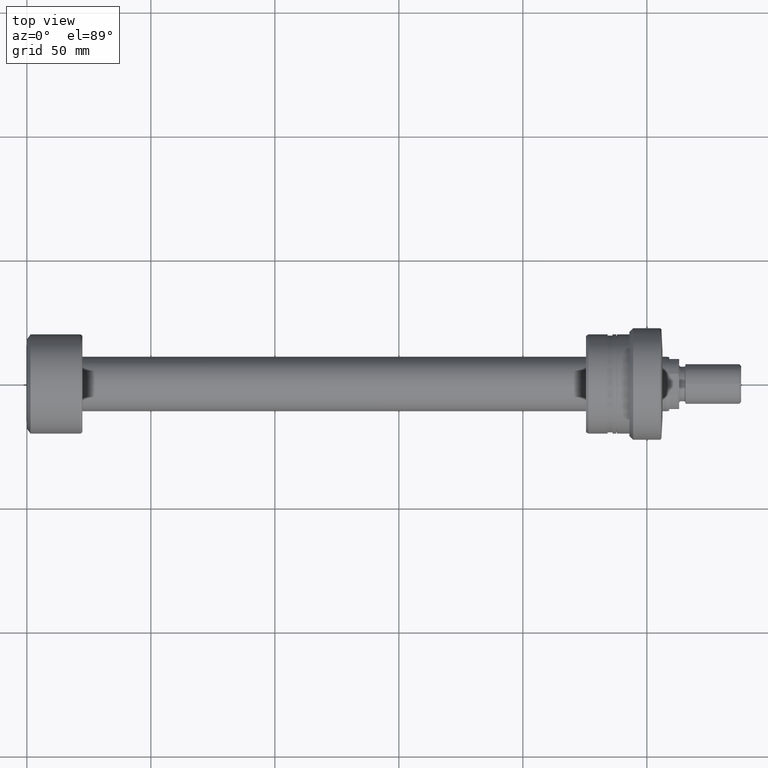
[diagram: clean part render]
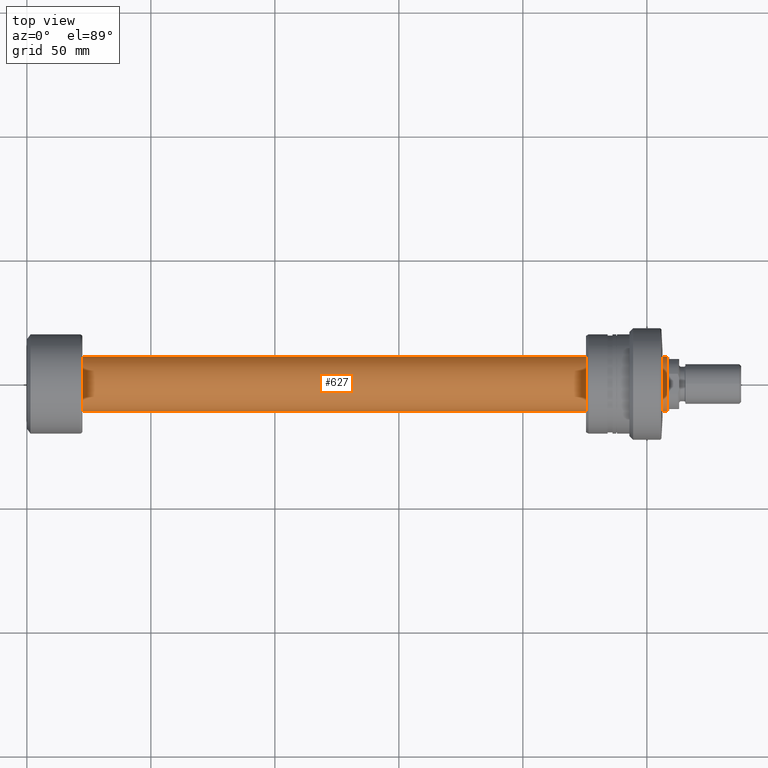
[diagram: same view with one face highlighted and labeled with its STEP entity id]
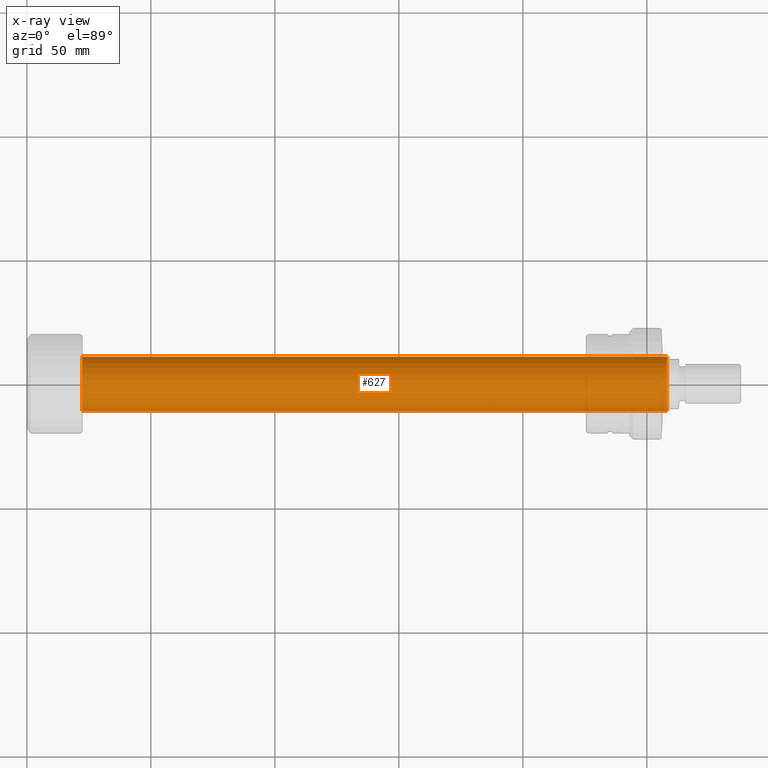
[diagram: x-ray of the same camera — body ghosted, the highlighted face saturated]
A machine part, top view. The second image highlights one B-rep face of the part: STEP entity #627.
The next image is the same camera in x-ray: the body ghosted, the highlighted face saturated — about 0% of this face is hidden behind the body in this view.
In plain terms, the highlighted cylindrical surface (edge-blend (fillet) strip) has radius 11 mm, axis along (-1, -0, -0).
Its self-contained STEP definition (entity closure, byte-faithful):
#34 = ORIENTED_EDGE ( 'NONE', *, *, #2567, .F. ) ;
#125 = VECTOR ( 'NONE', #1526, 1000.000000000000000 ) ;
#228 = VERTEX_POINT ( 'NONE', #365 ) ;
#365 = CARTESIAN_POINT ( 'NONE',  ( 258.0667575123237611, -11.00000000000019362, 0.000000000000000000 ) ) ;
#391 = DIRECTION ( 'NONE',  ( -1.000000000000000000, -1.069542322069065801E-17, -0.000000000000000000 ) ) ;
#443 = CARTESIAN_POINT ( 'NONE',  ( 1.176496554275982935E-16, -11.00000000000009770, 0.000000000000000000 ) ) ;
#489 = CARTESIAN_POINT ( 'NONE',  ( 258.0667575123237611, 2.760133190785652966E-15, 0.000000000000000000 ) ) ;
#507 = CYLINDRICAL_SURFACE ( 'NONE', #1933, 11.00000000000009770 ) ;
#627 = ADVANCED_FACE ( 'NONE', ( #2738 ), #507, .T. ) ;
#651 = ORIENTED_EDGE ( 'NONE', *, *, #2262, .T. ) ;
#828 = CIRCLE ( 'NONE', #1103, 11.00000000000019718 ) ;
#1103 = AXIS2_PLACEMENT_3D ( 'NONE', #489, #1431, #2102 ) ;
#1390 = DIRECTION ( 'NONE',  ( -1.000000000000000000, -1.069542322069065801E-17, -0.000000000000000000 ) ) ;
#1412 = VERTEX_POINT ( 'NONE', #1763 ) ;
#1431 = DIRECTION ( 'NONE',  ( -1.000000000000000000, -1.069542322069065801E-17, -0.000000000000000000 ) ) ;
#1507 = LINE ( 'NONE', #2819, #2460 ) ;
#1526 = DIRECTION ( 'NONE',  ( -1.000000000000000000, -1.069542322069065801E-17, -0.000000000000000000 ) ) ;
#1761 = AXIS2_PLACEMENT_3D ( 'NONE', #1922, #391, #2167 ) ;
#1763 = CARTESIAN_POINT ( 'NONE',  ( 258.0667575123237611, 11.00000000000020073, 1.347111479062112859E-15 ) ) ;
#1888 = EDGE_LOOP ( 'NONE', ( #651, #2582, #34, #2451 ) ) ;
#1922 = CARTESIAN_POINT ( 'NONE',  ( 22.40000000000000924, 2.395774801434708725E-16, 0.000000000000000000 ) ) ;
#1923 = DIRECTION ( 'NONE',  ( -1.000000000000000000, -1.069542322069065801E-17, -0.000000000000000000 ) ) ;
#1933 = AXIS2_PLACEMENT_3D ( 'NONE', #2033, #1390, #2260 ) ;
#1990 = CARTESIAN_POINT ( 'NONE',  ( 22.40000000000000924, 11.00000000000000000, 1.347111479062094518E-15 ) ) ;
#2019 = EDGE_CURVE ( 'NONE', #1412, #2142, #1507, .T. ) ;
#2033 = CARTESIAN_POINT ( 'NONE',  ( 0.000000000000000000, 0.000000000000000000, 0.000000000000000000 ) ) ;
#2034 = LINE ( 'NONE', #443, #125 ) ;
#2102 = DIRECTION ( 'NONE',  ( 0.000000000000000000, -1.000000000000000000, 0.000000000000000000 ) ) ;
#2142 = VERTEX_POINT ( 'NONE', #1990 ) ;
#2167 = DIRECTION ( 'NONE',  ( 0.000000000000000000, -1.000000000000000000, 0.000000000000000000 ) ) ;
#2169 = EDGE_CURVE ( 'NONE', #228, #2534, #2034, .T. ) ;
#2219 = CIRCLE ( 'NONE', #1761, 11.00000000000000000 ) ;
#2260 = DIRECTION ( 'NONE',  ( 1.069542322069065955E-17, -1.000000000000000000, 0.000000000000000000 ) ) ;
#2262 = EDGE_CURVE ( 'NONE', #228, #1412, #828, .T. ) ;
#2451 = ORIENTED_EDGE ( 'NONE', *, *, #2169, .F. ) ;
#2460 = VECTOR ( 'NONE', #1923, 1000.000000000000000 ) ;
#2534 = VERTEX_POINT ( 'NONE', #2579 ) ;
#2567 = EDGE_CURVE ( 'NONE', #2534, #2142, #2219, .T. ) ;
#2579 = CARTESIAN_POINT ( 'NONE',  ( 22.40000000000000924, -11.00000000000000000, 0.000000000000000000 ) ) ;
#2582 = ORIENTED_EDGE ( 'NONE', *, *, #2019, .T. ) ;
#2738 = FACE_OUTER_BOUND ( 'NONE', #1888, .T. ) ;
#2819 = CARTESIAN_POINT ( 'NONE',  ( -1.176496554275982935E-16, 11.00000000000009770, 1.347111479062100632E-15 ) ) ;